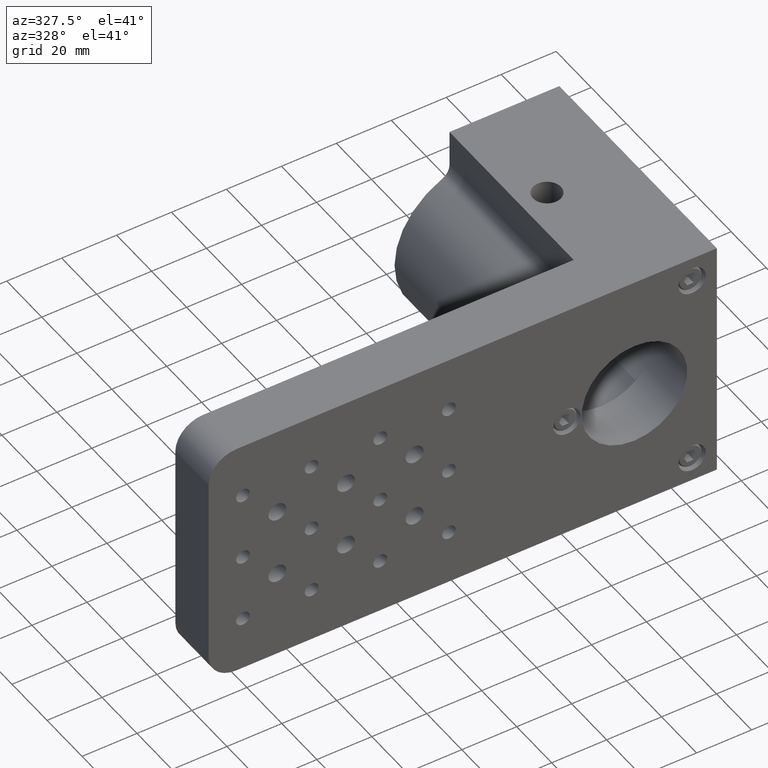
[diagram: clean part render]
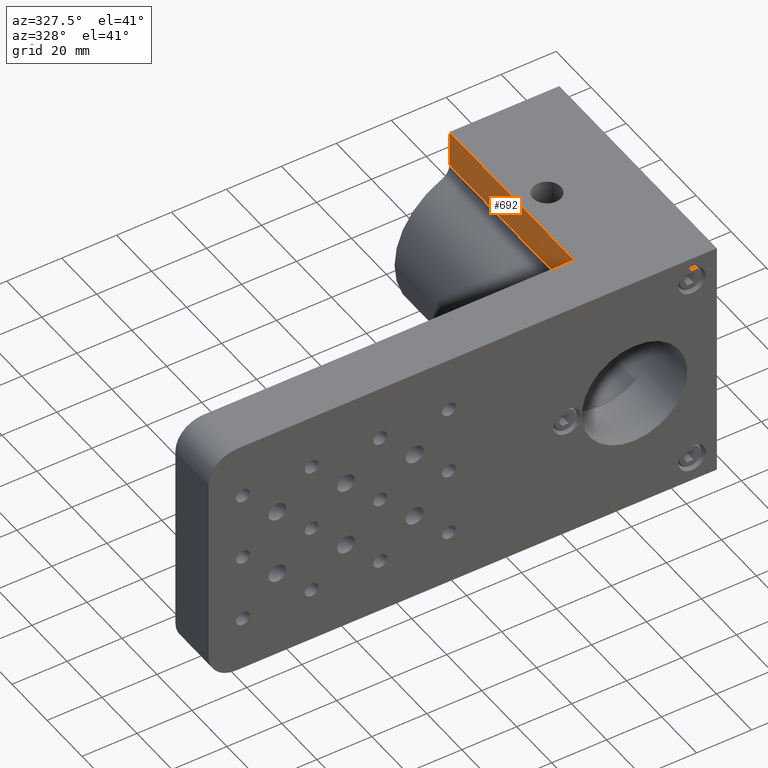
[diagram: same view with one face highlighted and labeled with its STEP entity id]
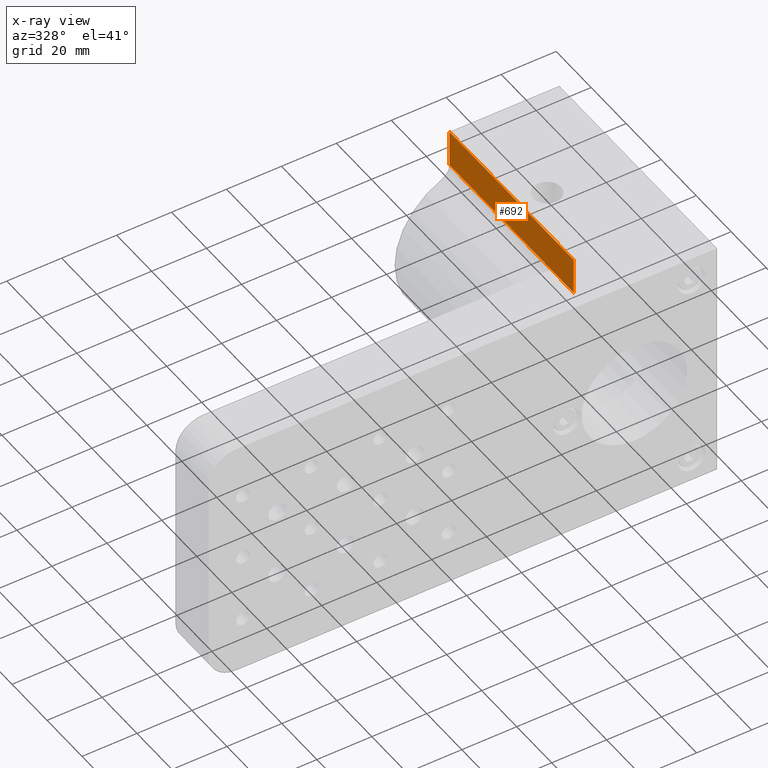
[diagram: x-ray of the same camera — body ghosted, the highlighted face saturated]
A machine part, auxiliary view. The second image highlights one B-rep face of the part: STEP entity #692.
The next image is the same camera in x-ray: the body ghosted, the highlighted face saturated — about 0% of this face is hidden behind the body in this view.
In plain terms, the highlighted planar face has unit normal (1, 0, -0).
Its self-contained STEP definition (entity closure, byte-faithful):
#90 = VERTEX_POINT ( 'NONE', #2750 ) ;
#153 = EDGE_CURVE ( 'NONE', #3098, #2683, #1617, .T. ) ;
#290 = EDGE_LOOP ( 'NONE', ( #3776, #530, #1475, #3462 ) ) ;
#426 = CARTESIAN_POINT ( 'NONE',  ( 134.3969387244474400, 104.2146020396520600, 175.4386705269637300 ) ) ;
#530 = ORIENTED_EDGE ( 'NONE', *, *, #1857, .T. ) ;
#569 = CARTESIAN_POINT ( 'NONE',  ( 134.3969387244474700, 104.2146020396520600, 188.8158939252802800 ) ) ;
#625 = PLANE ( 'NONE',  #2948 ) ;
#642 = DIRECTION ( 'NONE',  ( -1.037779149002632100E-016, 0.0000000000000000000, -1.000000000000000000 ) ) ;
#692 = ADVANCED_FACE ( 'NONE', ( #1338 ), #625, .F. ) ;
#1338 = FACE_OUTER_BOUND ( 'NONE', #290, .T. ) ;
#1475 = ORIENTED_EDGE ( 'NONE', *, *, #3551, .T. ) ;
#1515 = CARTESIAN_POINT ( 'NONE',  ( 134.3969387244474400, 175.2146020396520500, 172.1001651727419200 ) ) ;
#1523 = DIRECTION ( 'NONE',  ( -0.0000000000000000000, -1.000000000000000000, -0.0000000000000000000 ) ) ;
#1535 = DIRECTION ( 'NONE',  ( 1.037779149002632100E-016, 0.0000000000000000000, 1.000000000000000000 ) ) ;
#1593 = LINE ( 'NONE', #4377, #5152 ) ;
#1617 = LINE ( 'NONE', #3257, #3935 ) ;
#1857 = EDGE_CURVE ( 'NONE', #90, #4270, #1593, .T. ) ;
#1954 = CARTESIAN_POINT ( 'NONE',  ( 134.3969387244474400, 175.2146020396520500, 172.1001651727419200 ) ) ;
#2101 = CARTESIAN_POINT ( 'NONE',  ( 134.3969387244474700, 175.2146020396520500, 188.8158939252802800 ) ) ;
#2270 = VECTOR ( 'NONE', #4870, 1000.000000000000000 ) ;
#2683 = VERTEX_POINT ( 'NONE', #569 ) ;
#2750 = CARTESIAN_POINT ( 'NONE',  ( 134.3969387244474400, 175.2146020396520500, 175.4386705269637300 ) ) ;
#2948 = AXIS2_PLACEMENT_3D ( 'NONE', #1515, #3121, #642 ) ;
#3098 = VERTEX_POINT ( 'NONE', #2101 ) ;
#3119 = VECTOR ( 'NONE', #1535, 1000.000000000000000 ) ;
#3121 = DIRECTION ( 'NONE',  ( 1.000000000000000000, 0.0000000000000000000, -1.037779149002632100E-016 ) ) ;
#3257 = CARTESIAN_POINT ( 'NONE',  ( 134.3969387244474700, 175.2146020396520500, 188.8158939252802800 ) ) ;
#3388 = LINE ( 'NONE', #1954, #2270 ) ;
#3462 = ORIENTED_EDGE ( 'NONE', *, *, #153, .F. ) ;
#3551 = EDGE_CURVE ( 'NONE', #4270, #2683, #4611, .T. ) ;
#3585 = EDGE_CURVE ( 'NONE', #90, #3098, #3388, .T. ) ;
#3618 = CARTESIAN_POINT ( 'NONE',  ( 134.3969387244474400, 104.2146020396520600, 172.1001651727419200 ) ) ;
#3776 = ORIENTED_EDGE ( 'NONE', *, *, #3585, .F. ) ;
#3935 = VECTOR ( 'NONE', #4397, 1000.000000000000000 ) ;
#4270 = VERTEX_POINT ( 'NONE', #426 ) ;
#4377 = CARTESIAN_POINT ( 'NONE',  ( 134.3969387244474400, 104.2146020396520600, 175.4386705269637300 ) ) ;
#4397 = DIRECTION ( 'NONE',  ( -0.0000000000000000000, -1.000000000000000000, -0.0000000000000000000 ) ) ;
#4611 = LINE ( 'NONE', #3618, #3119 ) ;
#4870 = DIRECTION ( 'NONE',  ( 1.037779149002632100E-016, 0.0000000000000000000, 1.000000000000000000 ) ) ;
#5152 = VECTOR ( 'NONE', #1523, 1000.000000000000000 ) ;